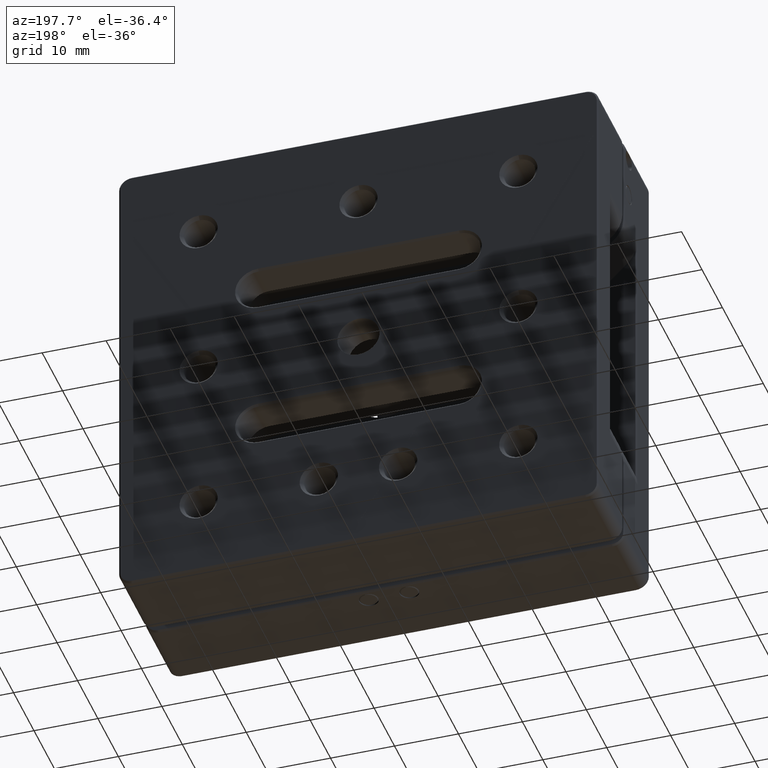
[diagram: clean part render]
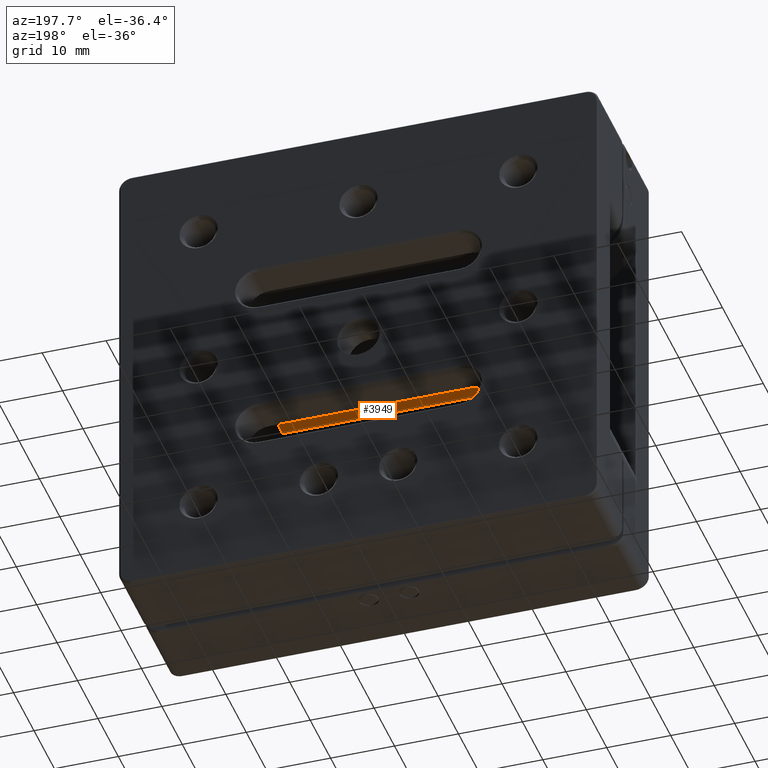
[diagram: same view with one face highlighted and labeled with its STEP entity id]
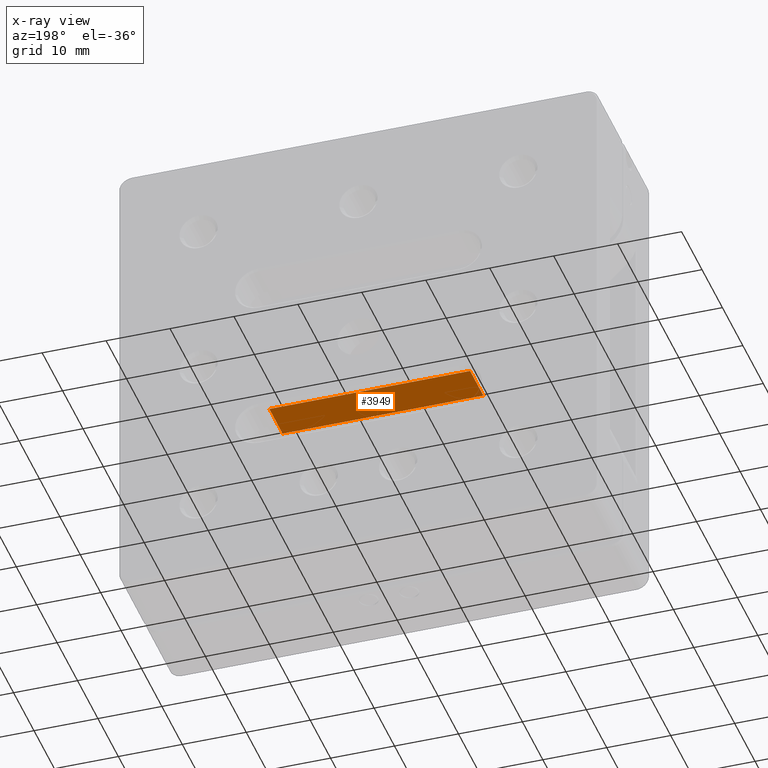
[diagram: x-ray of the same camera — body ghosted, the highlighted face saturated]
A machine part, auxiliary view. The second image highlights one B-rep face of the part: STEP entity #3949.
The next image is the same camera in x-ray: the body ghosted, the highlighted face saturated — about 1% of this face is hidden behind the body in this view.
In plain terms, the highlighted planar face has unit normal (-0, -0, 1).
Its self-contained STEP definition (entity closure, byte-faithful):
#415 = DIRECTION ( 'NONE',  ( -1.000000000000000000, 2.381043725472791608E-16, -7.171406736960403111E-18 ) ) ;
#567 = DIRECTION ( 'NONE',  ( -1.000000000000000000, 2.381043725472791608E-16, -7.171406736960403111E-18 ) ) ;
#952 = ORIENTED_EDGE ( 'NONE', *, *, #5089, .T. ) ;
#987 = EDGE_CURVE ( 'NONE', #1169, #5552, #2452, .T. ) ;
#1070 = LINE ( 'NONE', #8472, #1711 ) ;
#1169 = VERTEX_POINT ( 'NONE', #4861 ) ;
#1348 = ORIENTED_EDGE ( 'NONE', *, *, #987, .T. ) ;
#1711 = VECTOR ( 'NONE', #3712, 1000.000000000000000 ) ;
#2358 = DIRECTION ( 'NONE',  ( 2.577839154037636682E-16, 1.000000000000000000, 5.551115123125782702E-17 ) ) ;
#2452 = LINE ( 'NONE', #7299, #3718 ) ;
#2659 = CARTESIAN_POINT ( 'NONE',  ( 15.70000000000006501, 6.991032732011662532, -6.025000000000030553 ) ) ;
#3125 = FACE_OUTER_BOUND ( 'NONE', #3465, .T. ) ;
#3255 = EDGE_CURVE ( 'NONE', #5552, #6443, #5351, .T. ) ;
#3310 = CARTESIAN_POINT ( 'NONE',  ( -15.69999999999993356, 13.49103273201166964, -6.025000000000030553 ) ) ;
#3355 = EDGE_CURVE ( 'NONE', #6036, #6443, #7694, .T. ) ;
#3465 = EDGE_LOOP ( 'NONE', ( #7397, #4850, #952, #1348 ) ) ;
#3554 = VECTOR ( 'NONE', #2358, 1000.000000000000000 ) ;
#3712 = DIRECTION ( 'NONE',  ( -2.577839154037636682E-16, -1.000000000000000000, -5.551115123125782702E-17 ) ) ;
#3718 = VECTOR ( 'NONE', #415, 1000.000000000000000 ) ;
#3949 = ADVANCED_FACE ( 'NONE', ( #3125 ), #5403, .F. ) ;
#4041 = AXIS2_PLACEMENT_3D ( 'NONE', #2659, #6741, #567 ) ;
#4598 = DIRECTION ( 'NONE',  ( -1.000000000000000000, 2.381043725472791608E-16, -7.171406736960403111E-18 ) ) ;
#4850 = ORIENTED_EDGE ( 'NONE', *, *, #3355, .F. ) ;
#4861 = CARTESIAN_POINT ( 'NONE',  ( 15.70000000000006501, 6.991032732011662532, -6.025000000000029665 ) ) ;
#5089 = EDGE_CURVE ( 'NONE', #6036, #1169, #1070, .T. ) ;
#5351 = LINE ( 'NONE', #6469, #3554 ) ;
#5403 = PLANE ( 'NONE',  #4041 ) ;
#5552 = VERTEX_POINT ( 'NONE', #5615 ) ;
#5615 = CARTESIAN_POINT ( 'NONE',  ( -15.69999999999993356, 6.991032732011669637, -6.024999999999975486 ) ) ;
#6036 = VERTEX_POINT ( 'NONE', #6149 ) ;
#6149 = CARTESIAN_POINT ( 'NONE',  ( 15.70000000000006501, 13.49103273201166253, -6.025000000000030553 ) ) ;
#6443 = VERTEX_POINT ( 'NONE', #3310 ) ;
#6469 = CARTESIAN_POINT ( 'NONE',  ( -15.69999999999993356, 6.991032732011669637, -6.025000000000031442 ) ) ;
#6528 = VECTOR ( 'NONE', #4598, 1000.000000000000000 ) ;
#6741 = DIRECTION ( 'NONE',  ( -7.171406736960416977E-18, -5.551115123125780853E-17, 1.000000000000000000 ) ) ;
#7288 = CARTESIAN_POINT ( 'NONE',  ( 15.70000000000006501, 13.49103273201166253, -6.025000000000030553 ) ) ;
#7299 = CARTESIAN_POINT ( 'NONE',  ( 15.70000000000006501, 6.991032732011662532, -6.024999999999974598 ) ) ;
#7397 = ORIENTED_EDGE ( 'NONE', *, *, #3255, .T. ) ;
#7694 = LINE ( 'NONE', #7288, #6528 ) ;
#8472 = CARTESIAN_POINT ( 'NONE',  ( 15.70000000000006501, 6.991032732011662532, -6.025000000000030553 ) ) ;